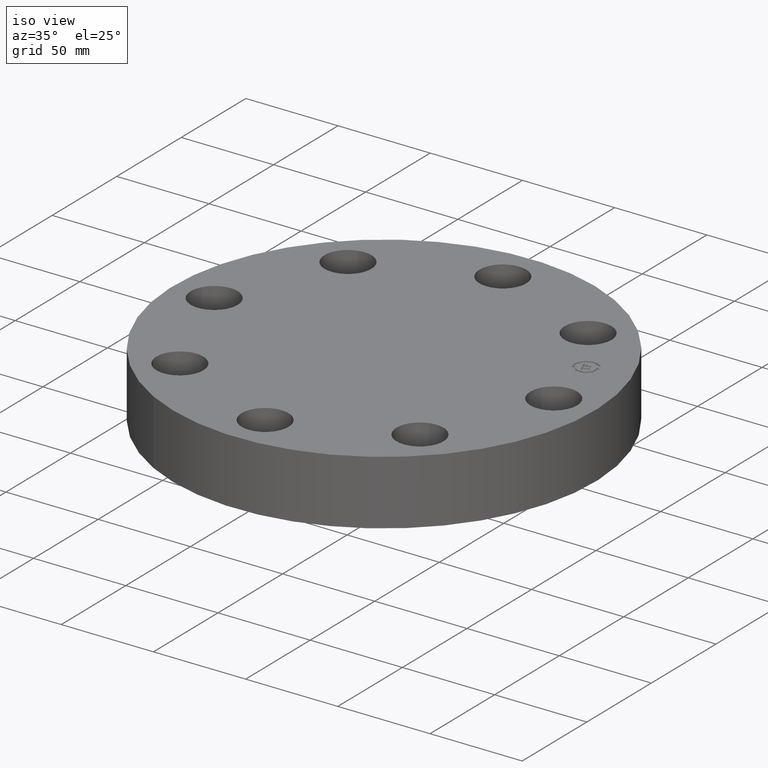
[diagram: clean part render]
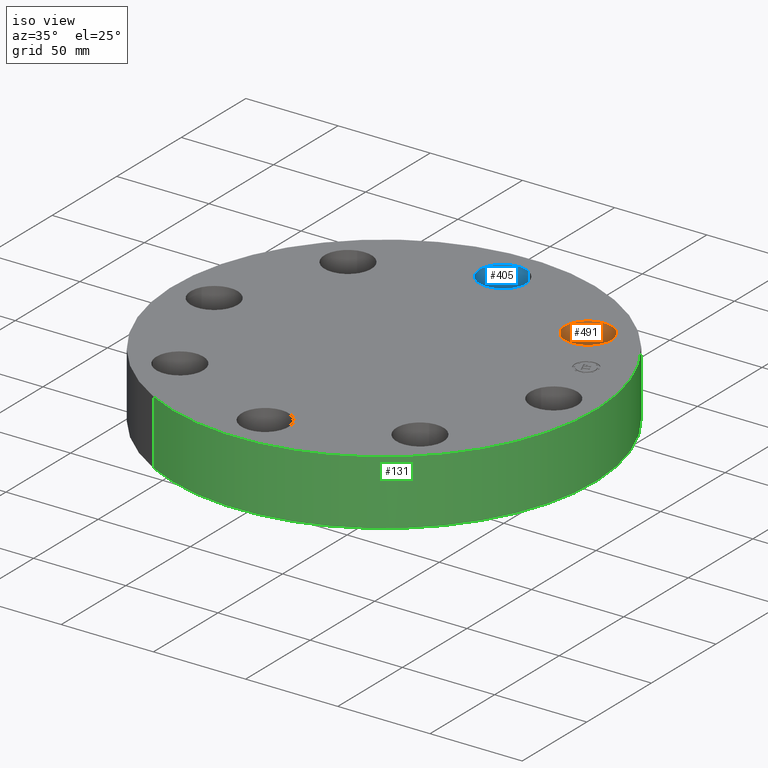
[diagram: same view with three faces highlighted in distinct colors, each labeled with its STEP entity id]
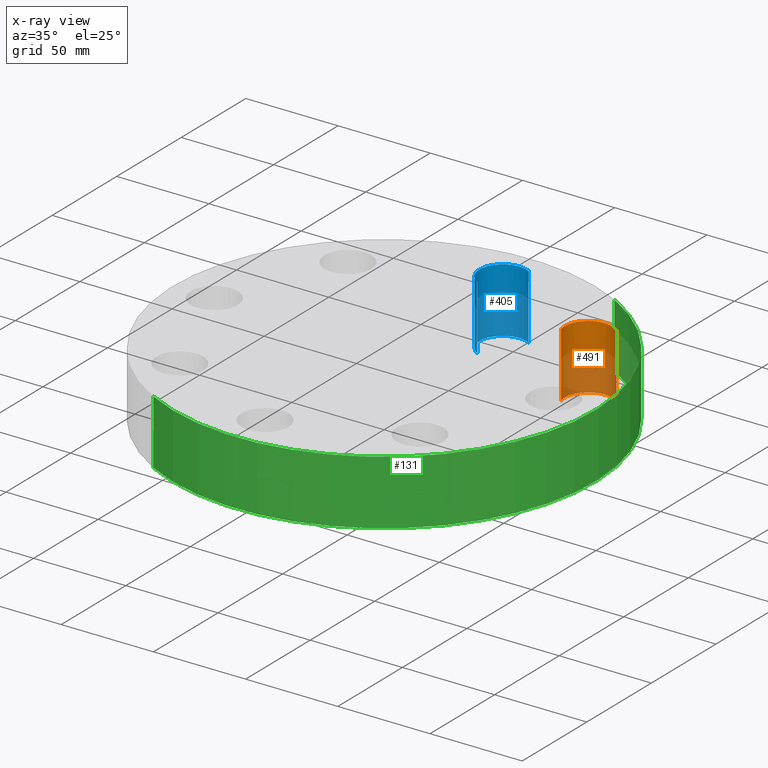
[diagram: x-ray of the same camera — body ghosted, the three highlighted faces saturated]
A machine part, iso view with three faces highlighted in distinct colors.
The next image is the same camera in x-ray (body ghosted, the three faces saturated) — at least one of them is partly hidden behind the body in this view.
Their STEP definitions:

[orange] entity #491 — the highlighted cylindrical surface (edge-blend (fillet) strip) has radius 12.7 mm, axis along (0, 0, -1).
#272=AXIS2_PLACEMENT_3D('Circle Axis2P3D',#270,#271,$) ;
#464=AXIS2_PLACEMENT_3D('Cylinder Axis2P3D',#461,#462,#463) ;
#482=AXIS2_PLACEMENT_3D('Circle Axis2P3D',#480,#481,$) ;
#270=CARTESIAN_POINT('Axis2P3D Location',(2.56326208181,2.56326208181,0.)) ;
#274=CARTESIAN_POINT('Vertex',(2.08348726682,2.42249231624,0.)) ;
#276=CARTESIAN_POINT('Vertex',(3.04303689681,2.70403184738,0.)) ;
#461=CARTESIAN_POINT('Axis2P3D Location',(2.56326208181,2.56326208181,1.37606299213)) ;
#466=CARTESIAN_POINT('Line Origine',(2.08348726682,2.42249231624,0.690000000003)) ;
#470=CARTESIAN_POINT('Vertex',(2.08348726682,2.42249231624,1.38000000001)) ;
#473=CARTESIAN_POINT('Line Origine',(3.04303689681,2.70403184738,0.690000000003)) ;
#477=CARTESIAN_POINT('Vertex',(3.04303689681,2.70403184738,1.38000000001)) ;
#480=CARTESIAN_POINT('Axis2P3D Location',(2.56326208181,2.56326208181,1.38000000001)) ;
#271=DIRECTION('Axis2P3D Direction',(0.,0.,-0.0393700787402)) ;
#462=DIRECTION('Axis2P3D Direction',(0.,0.,-0.0393700787402)) ;
#463=DIRECTION('Axis2P3D XDirection',(0.0377775444876,0.0110842335096,0.)) ;
#467=DIRECTION('Vector Direction',(0.,0.,-0.0393700787402)) ;
#474=DIRECTION('Vector Direction',(0.,0.,-0.0393700787402)) ;
#481=DIRECTION('Axis2P3D Direction',(0.,0.,-0.0393700787402)) ;
#468=VECTOR('Line Direction',#467,0.0393700787402) ;
#475=VECTOR('Line Direction',#474,0.0393700787402) ;
#486=ORIENTED_EDGE('',*,*,#472,.F.) ;
#487=ORIENTED_EDGE('',*,*,#278,.T.) ;
#488=ORIENTED_EDGE('',*,*,#479,.T.) ;
#489=ORIENTED_EDGE('',*,*,#484,.F.) ;
#491=ADVANCED_FACE('PartBody',(#490),#465,.F.) ;
#273=CIRCLE('generated circle',#272,0.500000000002) ;
#483=CIRCLE('generated circle',#482,0.500000000002) ;
#465=CYLINDRICAL_SURFACE('generated cylinder',#464,0.500000000002) ;
#278=EDGE_CURVE('',#275,#277,#273,.T.) ;
#472=EDGE_CURVE('',#275,#471,#469,.F.) ;
#479=EDGE_CURVE('',#277,#478,#476,.F.) ;
#484=EDGE_CURVE('',#471,#478,#483,.T.) ;
#485=EDGE_LOOP('',(#486,#487,#488,#489)) ;
#490=FACE_OUTER_BOUND('',#485,.T.) ;
#469=LINE('Line',#466,#468) ;
#476=LINE('Line',#473,#475) ;
#275=VERTEX_POINT('',#274) ;
#277=VERTEX_POINT('',#276) ;
#471=VERTEX_POINT('',#470) ;
#478=VERTEX_POINT('',#477) ;

[blue] entity #405 — the highlighted cylindrical surface (edge-blend (fillet) strip) has radius 12.7 mm, axis along (0, 0, -1).
#254=AXIS2_PLACEMENT_3D('Circle Axis2P3D',#252,#253,$) ;
#378=AXIS2_PLACEMENT_3D('Cylinder Axis2P3D',#375,#376,#377) ;
#396=AXIS2_PLACEMENT_3D('Circle Axis2P3D',#394,#395,$) ;
#252=CARTESIAN_POINT('Axis2P3D Location',(-6.2941777774E-016,3.62500000001,0.)) ;
#256=CARTESIAN_POINT('Vertex',(-0.239712769303,3.18620871907,0.)) ;
#258=CARTESIAN_POINT('Vertex',(0.239712769303,4.06379128096,0.)) ;
#375=CARTESIAN_POINT('Axis2P3D Location',(-6.65901697039E-016,3.62500000001,1.37606299213)) ;
#380=CARTESIAN_POINT('Line Origine',(-0.239712769303,3.18620871907,0.690000000003)) ;
#384=CARTESIAN_POINT('Vertex',(-0.239712769303,3.18620871907,1.38000000001)) ;
#387=CARTESIAN_POINT('Line Origine',(0.239712769303,4.06379128096,0.690000000003)) ;
#391=CARTESIAN_POINT('Vertex',(0.239712769303,4.06379128096,1.38000000001)) ;
#394=CARTESIAN_POINT('Axis2P3D Location',(-6.65901697039E-016,3.62500000001,1.38000000001)) ;
#253=DIRECTION('Axis2P3D Direction',(0.,0.,-0.0393700787402)) ;
#376=DIRECTION('Axis2P3D Direction',(0.,0.,-0.0393700787402)) ;
#377=DIRECTION('Axis2P3D XDirection',(0.0188750212049,0.0345504945626,0.)) ;
#381=DIRECTION('Vector Direction',(0.,0.,-0.0393700787402)) ;
#388=DIRECTION('Vector Direction',(0.,0.,-0.0393700787402)) ;
#395=DIRECTION('Axis2P3D Direction',(0.,0.,-0.0393700787402)) ;
#382=VECTOR('Line Direction',#381,0.0393700787402) ;
#389=VECTOR('Line Direction',#388,0.0393700787402) ;
#400=ORIENTED_EDGE('',*,*,#386,.F.) ;
#401=ORIENTED_EDGE('',*,*,#260,.T.) ;
#402=ORIENTED_EDGE('',*,*,#393,.T.) ;
#403=ORIENTED_EDGE('',*,*,#398,.F.) ;
#405=ADVANCED_FACE('PartBody',(#404),#379,.F.) ;
#255=CIRCLE('generated circle',#254,0.500000000002) ;
#397=CIRCLE('generated circle',#396,0.500000000002) ;
#379=CYLINDRICAL_SURFACE('generated cylinder',#378,0.500000000002) ;
#260=EDGE_CURVE('',#257,#259,#255,.T.) ;
#386=EDGE_CURVE('',#257,#385,#383,.F.) ;
#393=EDGE_CURVE('',#259,#392,#390,.F.) ;
#398=EDGE_CURVE('',#385,#392,#397,.T.) ;
#399=EDGE_LOOP('',(#400,#401,#402,#403)) ;
#404=FACE_OUTER_BOUND('',#399,.T.) ;
#383=LINE('Line',#380,#382) ;
#390=LINE('Line',#387,#389) ;
#257=VERTEX_POINT('',#256) ;
#259=VERTEX_POINT('',#258) ;
#385=VERTEX_POINT('',#384) ;
#392=VERTEX_POINT('',#391) ;

[green] entity #131 — the highlighted cylindrical surface (partial cylindrical patch) has radius 114.3 mm, axis along (0, 0, -1).
#95=AXIS2_PLACEMENT_3D('Cylinder Axis2P3D',#92,#93,#94) ;
#99=AXIS2_PLACEMENT_3D('Circle Axis2P3D',#97,#98,$) ;
#115=AXIS2_PLACEMENT_3D('Circle Axis2P3D',#113,#114,$) ;
#92=CARTESIAN_POINT('Axis2P3D Location',(0.,0.,0.690000000003)) ;
#97=CARTESIAN_POINT('Axis2P3D Location',(0.,0.,4.19611851827E-016)) ;
#101=CARTESIAN_POINT('Vertex',(2.15741492373,3.94912152852,2.79741234551E-016)) ;
#103=CARTESIAN_POINT('Vertex',(-2.15741492373,-3.94912152852,2.79741234551E-016)) ;
#106=CARTESIAN_POINT('Line Origine',(2.15741492373,3.94912152852,0.690000000003)) ;
#110=CARTESIAN_POINT('Vertex',(2.15741492373,3.94912152852,1.38000000001)) ;
#113=CARTESIAN_POINT('Axis2P3D Location',(0.,0.,1.38000000001)) ;
#117=CARTESIAN_POINT('Vertex',(-2.15741492373,-3.94912152852,1.38000000001)) ;
#120=CARTESIAN_POINT('Line Origine',(-2.15741492373,-3.94912152852,0.690000000003)) ;
#93=DIRECTION('Axis2P3D Direction',(0.,0.,-0.0393700787402)) ;
#94=DIRECTION('Axis2P3D XDirection',(-0.0188750212049,-0.0345504945626,0.)) ;
#98=DIRECTION('Axis2P3D Direction',(0.,0.,-0.0393700787402)) ;
#107=DIRECTION('Vector Direction',(0.,0.,-0.0393700787402)) ;
#114=DIRECTION('Axis2P3D Direction',(0.,0.,-0.0393700787402)) ;
#121=DIRECTION('Vector Direction',(0.,0.,-0.0393700787402)) ;
#108=VECTOR('Line Direction',#107,0.0393700787402) ;
#122=VECTOR('Line Direction',#121,0.0393700787402) ;
#126=ORIENTED_EDGE('',*,*,#105,.F.) ;
#127=ORIENTED_EDGE('',*,*,#112,.T.) ;
#128=ORIENTED_EDGE('',*,*,#119,.T.) ;
#129=ORIENTED_EDGE('',*,*,#124,.F.) ;
#131=ADVANCED_FACE('PartBody',(#130),#96,.T.) ;
#100=CIRCLE('generated circle',#99,4.50000000002) ;
#116=CIRCLE('generated circle',#115,4.50000000002) ;
#96=CYLINDRICAL_SURFACE('generated cylinder',#95,4.50000000002) ;
#105=EDGE_CURVE('',#102,#104,#100,.T.) ;
#112=EDGE_CURVE('',#102,#111,#109,.F.) ;
#119=EDGE_CURVE('',#111,#118,#116,.T.) ;
#124=EDGE_CURVE('',#104,#118,#123,.F.) ;
#125=EDGE_LOOP('',(#126,#127,#128,#129)) ;
#130=FACE_OUTER_BOUND('',#125,.T.) ;
#109=LINE('Line',#106,#108) ;
#123=LINE('Line',#120,#122) ;
#102=VERTEX_POINT('',#101) ;
#104=VERTEX_POINT('',#103) ;
#111=VERTEX_POINT('',#110) ;
#118=VERTEX_POINT('',#117) ;